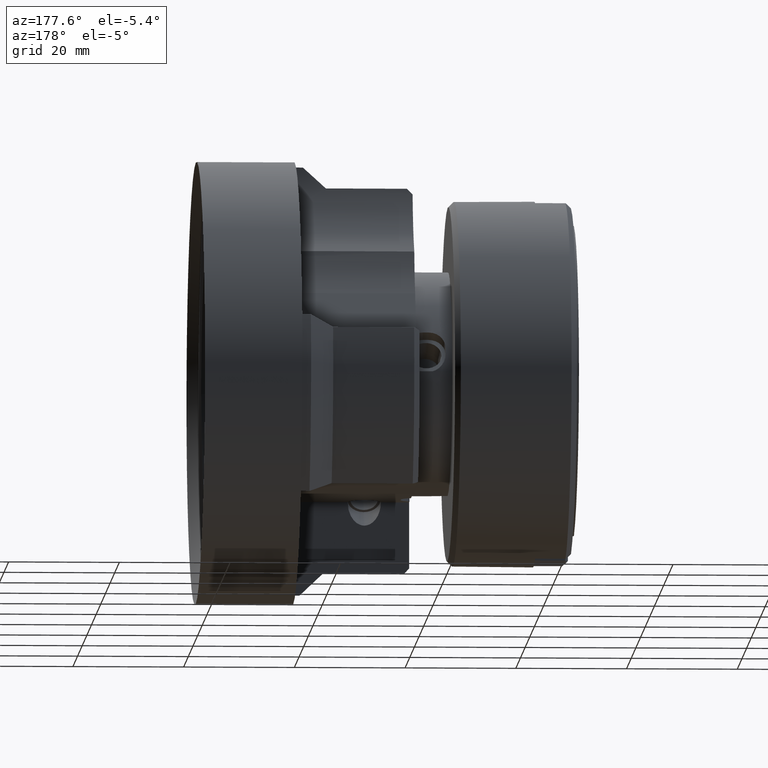
[diagram: clean part render]
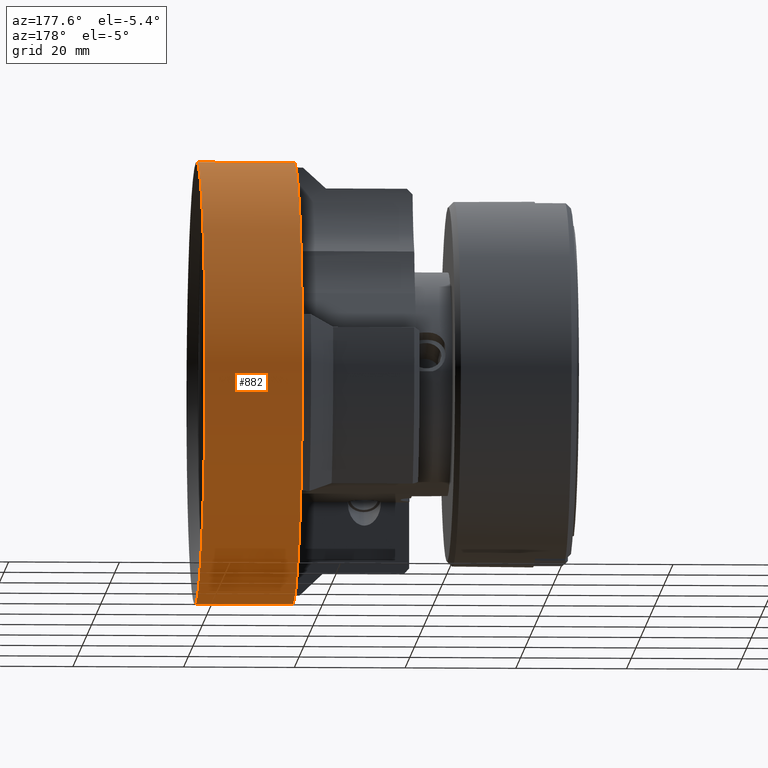
[diagram: same view with one face highlighted and labeled with its STEP entity id]
A machine part, auxiliary view. The second image highlights one B-rep face of the part: STEP entity #882.
In plain terms, the highlighted cylindrical surface (partial cylindrical patch) has radius 40 mm, axis along (1, -0, -0).
Its self-contained STEP definition (entity closure, byte-faithful):
#204 = DIRECTION ( 'NONE',  ( 0.0000000000000000000, 0.0000000000000000000, -1.000000000000000000 ) ) ;
#205 = DIRECTION ( 'NONE',  ( 1.000000000000000000, -0.0000000000000000000, -0.0000000000000000000 ) ) ;
#206 = CARTESIAN_POINT ( 'NONE',  ( 2.000000000000001800, 0.0000000000000000000, 0.0000000000000000000 ) ) ;
#413 = DIRECTION ( 'NONE',  ( 1.000000000000000000, -0.0000000000000000000, -0.0000000000000000000 ) ) ;
#433 = CARTESIAN_POINT ( 'NONE',  ( 11.51720551389995300, 4.898587196589413000E-015, 40.00000000000000000 ) ) ;
#524 = AXIS2_PLACEMENT_3D ( 'NONE', #5200, #5283, #5152 ) ;
#722 = VERTEX_POINT ( 'NONE', #4772 ) ;
#732 = VERTEX_POINT ( 'NONE', #4756 ) ;
#882 = ADVANCED_FACE ( 'NONE', ( #4065 ), #4074, .T. ) ;
#1103 = EDGE_LOOP ( 'NONE', ( #2158, #2131, #2990, #2207 ) ) ;
#1857 = DIRECTION ( 'NONE',  ( 0.0000000000000000000, 0.0000000000000000000, -1.000000000000000000 ) ) ;
#1858 = DIRECTION ( 'NONE',  ( 1.000000000000000000, -0.0000000000000000000, -0.0000000000000000000 ) ) ;
#1859 = CARTESIAN_POINT ( 'NONE',  ( -15.60000000000000000, 0.0000000000000000000, 0.0000000000000000000 ) ) ;
#1926 = DIRECTION ( 'NONE',  ( 1.000000000000000000, -0.0000000000000000000, -0.0000000000000000000 ) ) ;
#1933 = CARTESIAN_POINT ( 'NONE',  ( 11.51720551389995300, 0.0000000000000000000, -40.00000000000000000 ) ) ;
#2131 = ORIENTED_EDGE ( 'NONE', *, *, #3098, .T. ) ;
#2158 = ORIENTED_EDGE ( 'NONE', *, *, #3350, .T. ) ;
#2207 = ORIENTED_EDGE ( 'NONE', *, *, #3323, .F. ) ;
#2388 = VERTEX_POINT ( 'NONE', #5205 ) ;
#2390 = VERTEX_POINT ( 'NONE', #5268 ) ;
#2575 = AXIS2_PLACEMENT_3D ( 'NONE', #206, #205, #204 ) ;
#2594 = AXIS2_PLACEMENT_3D ( 'NONE', #1859, #1858, #1857 ) ;
#2756 = LINE ( 'NONE', #1933, #2773 ) ;
#2773 = VECTOR ( 'NONE', #1926, 1000.000000000000000 ) ;
#2990 = ORIENTED_EDGE ( 'NONE', *, *, #3159, .F. ) ;
#3098 = EDGE_CURVE ( 'NONE', #2390, #732, #3972, .T. ) ;
#3159 = EDGE_CURVE ( 'NONE', #722, #732, #4317, .T. ) ;
#3323 = EDGE_CURVE ( 'NONE', #2388, #722, #2756, .T. ) ;
#3350 = EDGE_CURVE ( 'NONE', #2388, #2390, #3523, .T. ) ;
#3523 = CIRCLE ( 'NONE', #2594, 40.00000000000000000 ) ;
#3972 = LINE ( 'NONE', #433, #3979 ) ;
#3979 = VECTOR ( 'NONE', #413, 1000.000000000000000 ) ;
#4065 = FACE_OUTER_BOUND ( 'NONE', #1103, .T. ) ;
#4074 = CYLINDRICAL_SURFACE ( 'NONE', #524, 40.00000000000000000 ) ;
#4317 = CIRCLE ( 'NONE', #2575, 40.00000000000000000 ) ;
#4756 = CARTESIAN_POINT ( 'NONE',  ( 2.000000000000001800, 4.898587196589413800E-015, 40.00000000000000000 ) ) ;
#4772 = CARTESIAN_POINT ( 'NONE',  ( 2.000000000000001800, 0.0000000000000000000, -40.00000000000000000 ) ) ;
#5152 = DIRECTION ( 'NONE',  ( 0.0000000000000000000, 0.0000000000000000000, -1.000000000000000000 ) ) ;
#5200 = CARTESIAN_POINT ( 'NONE',  ( 11.51720551389995300, 0.0000000000000000000, 0.0000000000000000000 ) ) ;
#5205 = CARTESIAN_POINT ( 'NONE',  ( -15.60000000000000000, 0.0000000000000000000, -40.00000000000000000 ) ) ;
#5268 = CARTESIAN_POINT ( 'NONE',  ( -15.60000000000000000, 4.898587196589413000E-015, 40.00000000000000000 ) ) ;
#5283 = DIRECTION ( 'NONE',  ( 1.000000000000000000, -0.0000000000000000000, -0.0000000000000000000 ) ) ;